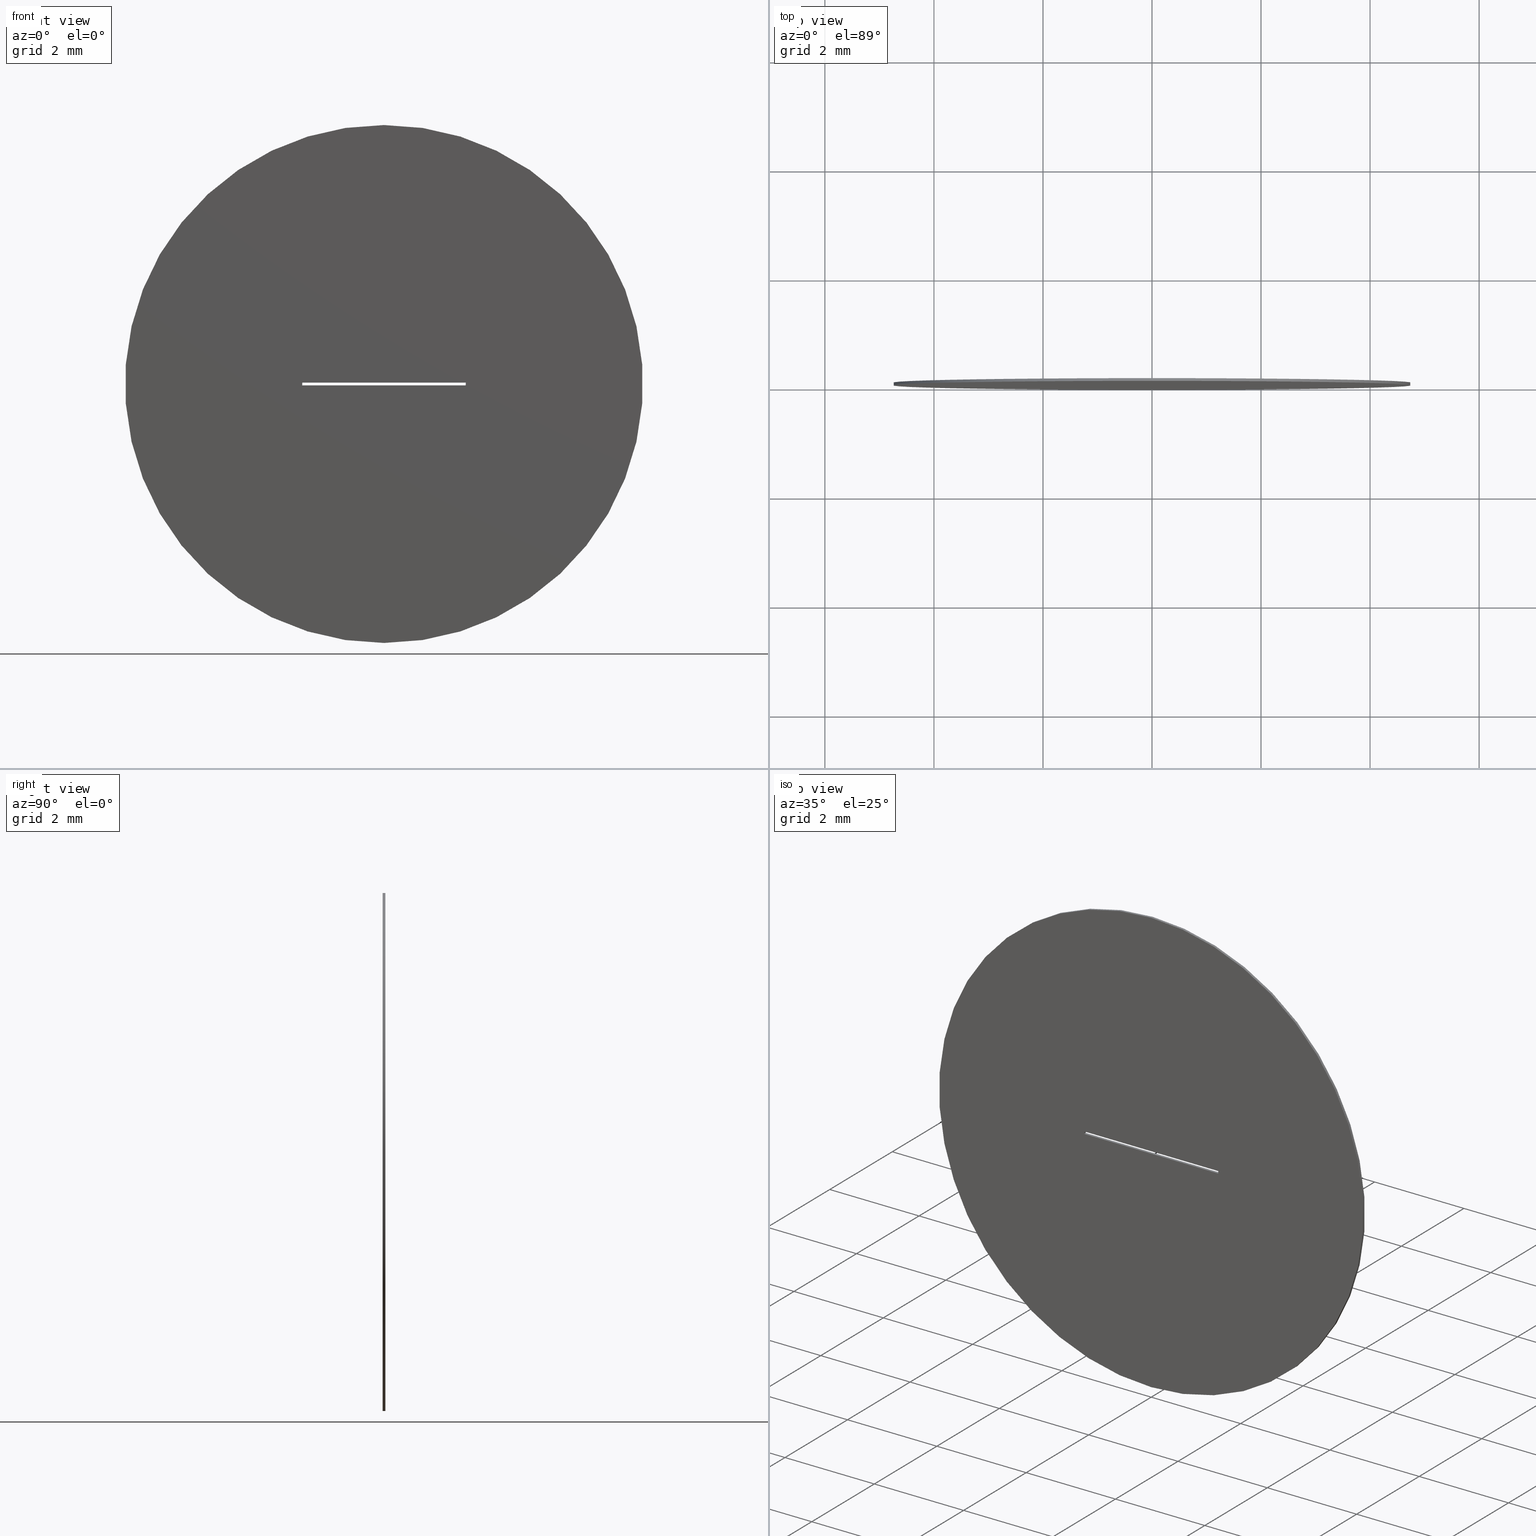
[diagram: canonical four-view strip — front | top / right | iso, engineering-drawing reading convention]
A machine part, canonical four-view strip (front | top / right | iso — engineering-drawing reading convention). The complete STEP part file that produces these views, byte-faithful:
ISO-10303-21;
HEADER;
FILE_DESCRIPTION (( 'STEP AP203' ),
    '1' );
FILE_NAME ('1.5.4.7-ZXG-9.5-50.STEP',
    '2024-05-29T06:48:49',
    ( '' ),
    ( '' ),
    'SwSTEP 2.0',
    'SolidWorks 2021',
    '' );
FILE_SCHEMA (( 'CONFIG_CONTROL_DESIGN' ));
ENDSEC;

DATA;
#1 = EDGE_CURVE ( 'NONE', #161, #24, #122, .T. ) ;
#2 = DATE_AND_TIME ( #44, #307 ) ;
#3 = AXIS2_PLACEMENT_3D ( 'NONE', #189, #29, #76 ) ;
#4 = DIRECTION ( 'NONE',  ( 0.000000000000000000, 0.000000000000000000, 1.000000000000000000 ) ) ;
#5 = APPROVAL_PERSON_ORGANIZATION ( #93, #179, #184 ) ;
#6 = DIRECTION ( 'NONE',  ( -0.000000000000000000, -1.000000000000000000, -0.000000000000000000 ) ) ;
#7 = CARTESIAN_POINT ( 'NONE',  ( 0.000000000000000000, 0.05000000000000000278, 0.000000000000000000 ) ) ;
#8 = EDGE_CURVE ( 'NONE', #161, #180, #286, .T. ) ;
#9 = CARTESIAN_POINT ( 'NONE',  ( 0.000000000000000000, 0.05000000000000000278, 0.000000000000000000 ) ) ;
#10 = AXIS2_PLACEMENT_3D ( 'NONE', #34, #219, #111 ) ;
#11 = CARTESIAN_POINT ( 'NONE',  ( -1.500000000000000000, 0.05000000000000000278, -0.02499999999999999792 ) ) ;
#12 = DIRECTION ( 'NONE',  ( 1.000000000000000000, 0.000000000000000000, 0.000000000000000000 ) ) ;
#13 = CARTESIAN_POINT ( 'NONE',  ( 1.500000000000000000, 0.000000000000000000, 0.02500000000000000486 ) ) ;
#14 =( NAMED_UNIT ( * ) SI_UNIT ( $, .STERADIAN. ) SOLID_ANGLE_UNIT ( ) );
#15 = ADVANCED_FACE ( 'NONE', ( #290 ), #56, .T. ) ;
#16 = DIRECTION ( 'NONE',  ( -0.000000000000000000, -1.000000000000000000, -0.000000000000000000 ) ) ;
#17 = LINE ( 'NONE', #271, #190 ) ;
#18 = EDGE_LOOP ( 'NONE', ( #48, #156 ) ) ;
#19 = EDGE_LOOP ( 'NONE', ( #176, #158, #226, #132 ) ) ;
#20 = LOCAL_TIME ( 14, 48, 49.00000000000000000, #25 ) ;
#21 = EDGE_LOOP ( 'NONE', ( #228, #88, #258, #92 ) ) ;
#22 = APPROVAL ( #202, 'δָ��' ) ;
#23 = ORIENTED_EDGE ( 'NONE', *, *, #260, .F. ) ;
#24 = VERTEX_POINT ( 'NONE', #124 ) ;
#25 = COORDINATED_UNIVERSAL_TIME_OFFSET ( 8, 0, .AHEAD. ) ;
#26 = DESIGN_CONTEXT ( 'detailed design', #54, 'design' ) ;
#27 = LINE ( 'NONE', #213, #256 ) ;
#28 = CC_DESIGN_SECURITY_CLASSIFICATION ( #206, ( #150 ) ) ;
#29 = DIRECTION ( 'NONE',  ( -0.000000000000000000, -1.000000000000000000, -0.000000000000000000 ) ) ;
#30 = CC_DESIGN_PERSON_AND_ORGANIZATION_ASSIGNMENT ( #257, #72, ( #206 ) ) ;
#31 = DIRECTION ( 'NONE',  ( 0.000000000000000000, 1.000000000000000000, 0.000000000000000000 ) ) ;
#32 = CARTESIAN_POINT ( 'NONE',  ( -1.500000000000000000, 0.05000000000000000278, 0.02500000000000000486 ) ) ;
#33 = DIRECTION ( 'NONE',  ( 0.000000000000000000, 1.000000000000000000, 0.000000000000000000 ) ) ;
#34 = CARTESIAN_POINT ( 'NONE',  ( 0.000000000000000000, 0.000000000000000000, 0.000000000000000000 ) ) ;
#35 = APPLICATION_CONTEXT ( 'configuration controlled 3d designs of mechanical parts and assemblies' ) ;
#36 = ORGANIZATION ( 'δָ��', 'δָ��', '' ) ;
#37 = PLANE ( 'NONE',  #183 ) ;
#38 = DIRECTION ( 'NONE',  ( 0.000000000000000000, 0.000000000000000000, 1.000000000000000000 ) ) ;
#39 = AXIS2_PLACEMENT_3D ( 'NONE', #263, #215, #145 ) ;
#40 = ORIENTED_EDGE ( 'NONE', *, *, #166, .T. ) ;
#41 = ORIENTED_EDGE ( 'NONE', *, *, #193, .F. ) ;
#42 = ORIENTED_EDGE ( 'NONE', *, *, #280, .F. ) ;
#43 = COORDINATED_UNIVERSAL_TIME_OFFSET ( 8, 0, .AHEAD. ) ;
#44 = CALENDAR_DATE ( 2024, 29, 5 ) ;
#45 = VECTOR ( 'NONE', #171, 1000.000000000000000 ) ;
#46 = ORIENTED_EDGE ( 'NONE', *, *, #8, .F. ) ;
#47 = APPROVAL_STATUS ( 'not_yet_approved' ) ;
#48 = ORIENTED_EDGE ( 'NONE', *, *, #197, .F. ) ;
#49 = FACE_OUTER_BOUND ( 'NONE', #310, .T. ) ;
#50 = CALENDAR_DATE ( 2024, 29, 5 ) ;
#51 = SHAPE_DEFINITION_REPRESENTATION ( #281, #241 ) ;
#52 = EDGE_CURVE ( 'NONE', #180, #161, #123, .T. ) ;
#53 = DIRECTION ( 'NONE',  ( -0.000000000000000000, -1.000000000000000000, -0.000000000000000000 ) ) ;
#54 = APPLICATION_CONTEXT ( 'configuration controlled 3d designs of mechanical parts and assemblies' ) ;
#55 = PLANE ( 'NONE',  #182 ) ;
#56 = PLANE ( 'NONE',  #300 ) ;
#57 = ADVANCED_FACE ( 'NONE', ( #97 ), #289, .T. ) ;
#58 = CARTESIAN_POINT ( 'NONE',  ( 1.500000000000000000, 0.05000000000000000278, -0.02499999999999999792 ) ) ;
#59 =( GEOMETRIC_REPRESENTATION_CONTEXT ( 3 ) GLOBAL_UNCERTAINTY_ASSIGNED_CONTEXT ( ( #232 ) ) GLOBAL_UNIT_ASSIGNED_CONTEXT ( ( #194, #221, #14 ) ) REPRESENTATION_CONTEXT ( 'NONE', 'WORKASPACE' ) );
#60 = FACE_OUTER_BOUND ( 'NONE', #18, .T. ) ;
#61 = CC_DESIGN_DATE_AND_TIME_ASSIGNMENT ( #259, #118, ( #147 ) ) ;
#62 = APPROVAL_PERSON_ORGANIZATION ( #283, #22, #204 ) ;
#63 = APPLICATION_PROTOCOL_DEFINITION ( 'international standard', 'config_control_design', 1994, #35 ) ;
#64 = LINE ( 'NONE', #272, #45 ) ;
#65 = ADVANCED_FACE ( 'NONE', ( #73, #238 ), #55, .T. ) ;
#66 = PERSON ( 'δָ��', 'δָ��', 'δָ��', ('δָ��'), ('δָ��'), ('δָ��') ) ;
#67 = VERTEX_POINT ( 'NONE', #164 ) ;
#68 = EDGE_LOOP ( 'NONE', ( #284, #230, #157, #136 ) ) ;
#69 = PERSON_AND_ORGANIZATION_ROLE ( 'design_supplier' ) ;
#70 = CC_DESIGN_APPROVAL ( #179, ( #150 ) ) ;
#71 = VERTEX_POINT ( 'NONE', #162 ) ;
#72 = PERSON_AND_ORGANIZATION_ROLE ( 'classification_officer' ) ;
#73 = FACE_OUTER_BOUND ( 'NONE', #205, .T. ) ;
#74 = APPROVAL_DATE_TIME ( #2, #22 ) ;
#75 = EDGE_CURVE ( 'NONE', #67, #133, #168, .T. ) ;
#76 = DIRECTION ( 'NONE',  ( 0.000000000000000000, 0.000000000000000000, -1.000000000000000000 ) ) ;
#77 = DIRECTION ( 'NONE',  ( -1.000000000000000000, -0.000000000000000000, -0.000000000000000000 ) ) ;
#78 = CARTESIAN_POINT ( 'NONE',  ( 0.000000000000000000, 0.05000000000000000278, 0.000000000000000000 ) ) ;
#79 = DIRECTION ( 'NONE',  ( -0.000000000000000000, -0.000000000000000000, -1.000000000000000000 ) ) ;
#80 = DIRECTION ( 'NONE',  ( 0.000000000000000000, -0.000000000000000000, 1.000000000000000000 ) ) ;
#81 = VECTOR ( 'NONE', #261, 1000.000000000000000 ) ;
#82 = LINE ( 'NONE', #247, #296 ) ;
#83 = CC_DESIGN_PERSON_AND_ORGANIZATION_ASSIGNMENT ( #115, #163, ( #147 ) ) ;
#84 = CARTESIAN_POINT ( 'NONE',  ( 0.000000000000000000, 0.000000000000000000, 0.000000000000000000 ) ) ;
#85 = VECTOR ( 'NONE', #117, 1000.000000000000000 ) ;
#86 = DIRECTION ( 'NONE',  ( 0.000000000000000000, 1.000000000000000000, 0.000000000000000000 ) ) ;
#87 = PERSON_AND_ORGANIZATION_ROLE ( 'design_owner' ) ;
#88 = ORIENTED_EDGE ( 'NONE', *, *, #201, .F. ) ;
#89 = VERTEX_POINT ( 'NONE', #143 ) ;
#90 = ORIENTED_EDGE ( 'NONE', *, *, #116, .F. ) ;
#91 = ORIENTED_EDGE ( 'NONE', *, *, #75, .F. ) ;
#92 = ORIENTED_EDGE ( 'NONE', *, *, #193, .T. ) ;
#93 = PERSON_AND_ORGANIZATION ( #66, #36 ) ;
#94 = CARTESIAN_POINT ( 'NONE',  ( -1.500000000000000000, 0.05000000000000000278, -0.02499999999999999792 ) ) ;
#95 = DATE_AND_TIME ( #138, #20 ) ;
#96 = DIRECTION ( 'NONE',  ( 0.000000000000000000, 0.000000000000000000, -1.000000000000000000 ) ) ;
#97 = FACE_OUTER_BOUND ( 'NONE', #106, .T. ) ;
#98 = FACE_OUTER_BOUND ( 'NONE', #308, .T. ) ;
#99 = VECTOR ( 'NONE', #79, 1000.000000000000000 ) ;
#100 = LINE ( 'NONE', #192, #99 ) ;
#101 = FACE_OUTER_BOUND ( 'NONE', #19, .T. ) ;
#102 = DIRECTION ( 'NONE',  ( 1.000000000000000000, 0.000000000000000000, 0.000000000000000000 ) ) ;
#103 = CARTESIAN_POINT ( 'NONE',  ( 0.000000000000000000, 0.000000000000000000, -4.750000000000000000 ) ) ;
#104 = CC_DESIGN_PERSON_AND_ORGANIZATION_ASSIGNMENT ( #107, #87, ( #227 ) ) ;
#105 = VECTOR ( 'NONE', #270, 1000.000000000000000 ) ;
#106 = EDGE_LOOP ( 'NONE', ( #46, #282, #181, #114 ) ) ;
#107 = PERSON_AND_ORGANIZATION ( #66, #36 ) ;
#108 = ORIENTED_EDGE ( 'NONE', *, *, #8, .T. ) ;
#109 = EDGE_CURVE ( 'NONE', #250, #71, #218, .T. ) ;
#110 = VECTOR ( 'NONE', #243, 1000.000000000000000 ) ;
#111 = DIRECTION ( 'NONE',  ( 1.000000000000000000, 0.000000000000000000, 0.000000000000000000 ) ) ;
#112 = ORIENTED_EDGE ( 'NONE', *, *, #197, .T. ) ;
#113 = APPROVAL_ROLE ( '' ) ;
#114 = ORIENTED_EDGE ( 'NONE', *, *, #305, .F. ) ;
#115 = PERSON_AND_ORGANIZATION ( #66, #36 ) ;
#116 = EDGE_CURVE ( 'NONE', #203, #250, #144, .T. ) ;
#117 = DIRECTION ( 'NONE',  ( -0.000000000000000000, -1.000000000000000000, -0.000000000000000000 ) ) ;
#118 = DATE_TIME_ROLE ( 'creation_date' ) ;
#119 = VECTOR ( 'NONE', #53, 1000.000000000000000 ) ;
#120 = DIRECTION ( 'NONE',  ( 0.000000000000000000, 1.000000000000000000, 0.000000000000000000 ) ) ;
#121 = DIRECTION ( 'NONE',  ( -1.000000000000000000, 0.000000000000000000, -0.000000000000000000 ) ) ;
#122 = LINE ( 'NONE', #214, #119 ) ;
#123 = CIRCLE ( 'NONE', #149, 4.750000000000000000 ) ;
#124 = CARTESIAN_POINT ( 'NONE',  ( 5.817072295949927426E-16, 0.000000000000000000, 4.750000000000000000 ) ) ;
#125 = AXIS2_PLACEMENT_3D ( 'NONE', #173, #299, #195 ) ;
#126 = DIRECTION ( 'NONE',  ( 0.000000000000000000, 0.000000000000000000, -1.000000000000000000 ) ) ;
#127 = ADVANCED_FACE ( 'NONE', ( #49 ), #167, .T. ) ;
#128 = FACE_OUTER_BOUND ( 'NONE', #251, .T. ) ;
#129 = APPROVAL ( #254, 'δָ��' ) ;
#130 = DIRECTION ( 'NONE',  ( 0.000000000000000000, 0.000000000000000000, 1.000000000000000000 ) ) ;
#131 = MECHANICAL_CONTEXT ( 'NONE', #35, 'mechanical' ) ;
#132 = ORIENTED_EDGE ( 'NONE', *, *, #201, .T. ) ;
#133 = VERTEX_POINT ( 'NONE', #295 ) ;
#134 = ADVANCED_FACE ( 'NONE', ( #98 ), #267, .T. ) ;
#135 = DATE_AND_TIME ( #154, #242 ) ;
#136 = ORIENTED_EDGE ( 'NONE', *, *, #239, .T. ) ;
#137 = VECTOR ( 'NONE', #102, 1000.000000000000000 ) ;
#138 = CALENDAR_DATE ( 2024, 29, 5 ) ;
#139 = ORIENTED_EDGE ( 'NONE', *, *, #280, .T. ) ;
#140 = DIRECTION ( 'NONE',  ( -1.000000000000000000, 0.000000000000000000, 0.000000000000000000 ) ) ;
#141 = DATE_AND_TIME ( #50, #155 ) ;
#142 = VECTOR ( 'NONE', #276, 1000.000000000000000 ) ;
#143 = CARTESIAN_POINT ( 'NONE',  ( -1.500000000000000000, 0.000000000000000000, 0.02500000000000000486 ) ) ;
#144 = LINE ( 'NONE', #146, #264 ) ;
#145 = DIRECTION ( 'NONE',  ( 0.000000000000000000, 0.000000000000000000, -1.000000000000000000 ) ) ;
#146 = CARTESIAN_POINT ( 'NONE',  ( -1.500000000000000000, 0.05000000000000000278, -0.02499999999999999792 ) ) ;
#147 = PRODUCT_DEFINITION ( 'δ֪', '', #150, #26 ) ;
#148 = CARTESIAN_POINT ( 'NONE',  ( -1.500000000000000000, 0.05000000000000000278, -0.02499999999999999792 ) ) ;
#149 = AXIS2_PLACEMENT_3D ( 'NONE', #78, #31, #4 ) ;
#150 = PRODUCT_DEFINITION_FORMATION_WITH_SPECIFIED_SOURCE ( '�κ�', '', #227, .NOT_KNOWN. ) ;
#151 = CARTESIAN_POINT ( 'NONE',  ( -1.500000000000000000, 0.05000000000000000278, -0.02499999999999999792 ) ) ;
#152 = CARTESIAN_POINT ( 'NONE',  ( 0.000000000000000000, 0.000000000000000000, 0.000000000000000000 ) ) ;
#153 = VERTEX_POINT ( 'NONE', #191 ) ;
#154 = CALENDAR_DATE ( 2024, 29, 5 ) ;
#155 = LOCAL_TIME ( 14, 48, 49.00000000000000000, #262 ) ;
#156 = ORIENTED_EDGE ( 'NONE', *, *, #220, .F. ) ;
#157 = ORIENTED_EDGE ( 'NONE', *, *, #217, .T. ) ;
#158 = ORIENTED_EDGE ( 'NONE', *, *, #109, .F. ) ;
#159 = EDGE_CURVE ( 'NONE', #209, #153, #100, .T. ) ;
#160 = SECURITY_CLASSIFICATION_LEVEL ( 'unclassified' ) ;
#161 = VERTEX_POINT ( 'NONE', #169 ) ;
#162 = CARTESIAN_POINT ( 'NONE',  ( -1.500000000000000000, 0.000000000000000000, -0.02499999999999999792 ) ) ;
#163 = PERSON_AND_ORGANIZATION_ROLE ( 'creator' ) ;
#164 = CARTESIAN_POINT ( 'NONE',  ( -1.500000000000000000, 0.05000000000000000278, 0.02500000000000000486 ) ) ;
#165 = LOCAL_TIME ( 14, 48, 49.00000000000000000, #285 ) ;
#166 = EDGE_CURVE ( 'NONE', #133, #203, #268, .T. ) ;
#167 = CYLINDRICAL_SURFACE ( 'NONE', #39, 4.750000000000000000 ) ;
#168 = LINE ( 'NONE', #32, #81 ) ;
#169 = CARTESIAN_POINT ( 'NONE',  ( 5.817072295949927426E-16, 0.05000000000000000278, 4.750000000000000000 ) ) ;
#170 = LINE ( 'NONE', #302, #105 ) ;
#171 = DIRECTION ( 'NONE',  ( -0.000000000000000000, -1.000000000000000000, -0.000000000000000000 ) ) ;
#172 = DIRECTION ( 'NONE',  ( 0.000000000000000000, 0.000000000000000000, 1.000000000000000000 ) ) ;
#173 = CARTESIAN_POINT ( 'NONE',  ( 0.000000000000000000, 0.000000000000000000, 0.000000000000000000 ) ) ;
#174 = FACE_BOUND ( 'NONE', #68, .T. ) ;
#175 = CC_DESIGN_PERSON_AND_ORGANIZATION_ASSIGNMENT ( #311, #69, ( #150 ) ) ;
#176 = ORIENTED_EDGE ( 'NONE', *, *, #217, .F. ) ;
#177 = APPROVAL_DATE_TIME ( #135, #129 ) ;
#178 = ORIENTED_EDGE ( 'NONE', *, *, #116, .T. ) ;
#179 = APPROVAL ( #47, 'δָ��' ) ;
#180 = VERTEX_POINT ( 'NONE', #210 ) ;
#181 = ORIENTED_EDGE ( 'NONE', *, *, #220, .T. ) ;
#182 = AXIS2_PLACEMENT_3D ( 'NONE', #9, #120, #292 ) ;
#183 = AXIS2_PLACEMENT_3D ( 'NONE', #244, #38, #274 ) ;
#184 = APPROVAL_ROLE ( '' ) ;
#185 = LINE ( 'NONE', #94, #273 ) ;
#186 = DIRECTION ( 'NONE',  ( 0.000000000000000000, 0.000000000000000000, 1.000000000000000000 ) ) ;
#187 = MANIFOLD_SOLID_BREP ( '͹̨-����1', #216 ) ;
#188 = EDGE_CURVE ( 'NONE', #250, #67, #185, .T. ) ;
#189 = CARTESIAN_POINT ( 'NONE',  ( 0.000000000000000000, 0.05000000000000000278, 0.000000000000000000 ) ) ;
#190 = VECTOR ( 'NONE', #16, 1000.000000000000000 ) ;
#191 = CARTESIAN_POINT ( 'NONE',  ( 1.500000000000000000, 0.000000000000000000, -0.02499999999999999792 ) ) ;
#192 = CARTESIAN_POINT ( 'NONE',  ( 1.500000000000000000, 0.000000000000000000, -0.02499999999999999792 ) ) ;
#193 = EDGE_CURVE ( 'NONE', #133, #209, #27, .T. ) ;
#194 =( LENGTH_UNIT ( ) NAMED_UNIT ( * ) SI_UNIT ( .MILLI., .METRE. ) );
#195 = DIRECTION ( 'NONE',  ( 0.000000000000000000, 0.000000000000000000, 1.000000000000000000 ) ) ;
#196 = LINE ( 'NONE', #198, #142 ) ;
#197 = EDGE_CURVE ( 'NONE', #252, #24, #211, .T. ) ;
#198 = CARTESIAN_POINT ( 'NONE',  ( -1.500000000000000000, 0.05000000000000000278, 0.02500000000000000486 ) ) ;
#199 = CARTESIAN_POINT ( 'NONE',  ( -1.500000000000000000, 0.000000000000000000, 0.02500000000000000486 ) ) ;
#200 = ORIENTED_EDGE ( 'NONE', *, *, #166, .F. ) ;
#201 = EDGE_CURVE ( 'NONE', #67, #89, #196, .T. ) ;
#202 = APPROVAL_STATUS ( 'not_yet_approved' ) ;
#203 = VERTEX_POINT ( 'NONE', #297 ) ;
#204 = APPROVAL_ROLE ( '' ) ;
#205 = EDGE_LOOP ( 'NONE', ( #304, #108 ) ) ;
#206 = SECURITY_CLASSIFICATION ( '', '', #160 ) ;
#207 = ORIENTED_EDGE ( 'NONE', *, *, #109, .T. ) ;
#208 = CALENDAR_DATE ( 2024, 29, 5 ) ;
#209 = VERTEX_POINT ( 'NONE', #13 ) ;
#210 = CARTESIAN_POINT ( 'NONE',  ( 0.000000000000000000, 0.05000000000000000278, -4.750000000000000000 ) ) ;
#211 = CIRCLE ( 'NONE', #249, 4.750000000000000000 ) ;
#212 = APPROVAL_DATE_TIME ( #141, #179 ) ;
#213 = CARTESIAN_POINT ( 'NONE',  ( 1.500000000000000000, 0.05000000000000000278, 0.02500000000000000486 ) ) ;
#214 = CARTESIAN_POINT ( 'NONE',  ( 5.817072295949927426E-16, 0.05000000000000000278, 4.750000000000000000 ) ) ;
#215 = DIRECTION ( 'NONE',  ( -0.000000000000000000, -1.000000000000000000, -0.000000000000000000 ) ) ;
#216 = CLOSED_SHELL ( 'NONE', ( #57, #65, #287, #127, #134, #291, #275, #15 ) ) ;
#217 = EDGE_CURVE ( 'NONE', #71, #89, #82, .T. ) ;
#218 = LINE ( 'NONE', #11, #85 ) ;
#219 = DIRECTION ( 'NONE',  ( 0.000000000000000000, 0.000000000000000000, 1.000000000000000000 ) ) ;
#220 = EDGE_CURVE ( 'NONE', #24, #252, #223, .T. ) ;
#221 =( NAMED_UNIT ( * ) PLANE_ANGLE_UNIT ( ) SI_UNIT ( $, .RADIAN. ) );
#222 = LINE ( 'NONE', #199, #137 ) ;
#223 = CIRCLE ( 'NONE', #125, 4.750000000000000000 ) ;
#224 = APPLICATION_PROTOCOL_DEFINITION ( 'international standard', 'config_control_design', 1994, #54 ) ;
#225 = ORIENTED_EDGE ( 'NONE', *, *, #188, .F. ) ;
#226 = ORIENTED_EDGE ( 'NONE', *, *, #188, .T. ) ;
#227 = PRODUCT ( '1.5.4.7-ZXG-9.5-50', '1.5.4.7-ZXG-9.5-50', '', ( #131 ) ) ;
#228 = ORIENTED_EDGE ( 'NONE', *, *, #239, .F. ) ;
#229 = CC_DESIGN_APPROVAL ( #22, ( #147 ) ) ;
#230 = ORIENTED_EDGE ( 'NONE', *, *, #260, .T. ) ;
#231 = DATE_TIME_ROLE ( 'classification_date' ) ;
#232 = UNCERTAINTY_MEASURE_WITH_UNIT (LENGTH_MEASURE( 1.000000000000000082E-05 ), #194, 'distance_accuracy_value', 'NONE');
#233 = ORIENTED_EDGE ( 'NONE', *, *, #305, .T. ) ;
#234 = PERSON_AND_ORGANIZATION_ROLE ( 'creator' ) ;
#235 = DIRECTION ( 'NONE',  ( 0.000000000000000000, 0.000000000000000000, 1.000000000000000000 ) ) ;
#236 = PERSON_AND_ORGANIZATION ( #66, #36 ) ;
#237 = DIRECTION ( 'NONE',  ( 0.000000000000000000, 1.000000000000000000, 0.000000000000000000 ) ) ;
#238 = FACE_BOUND ( 'NONE', #255, .T. ) ;
#239 = EDGE_CURVE ( 'NONE', #89, #209, #222, .T. ) ;
#240 = DIRECTION ( 'NONE',  ( 0.000000000000000000, 0.000000000000000000, 1.000000000000000000 ) ) ;
#241 = ADVANCED_BREP_SHAPE_REPRESENTATION ( '1.5.4.7-ZXG-9.5-50', ( #187, #10 ), #59 ) ;
#242 = LOCAL_TIME ( 14, 48, 49.00000000000000000, #43 ) ;
#243 = DIRECTION ( 'NONE',  ( -0.000000000000000000, -0.000000000000000000, -1.000000000000000000 ) ) ;
#244 = CARTESIAN_POINT ( 'NONE',  ( -1.500000000000000000, 0.05000000000000000278, -0.02499999999999999792 ) ) ;
#245 = AXIS2_PLACEMENT_3D ( 'NONE', #148, #12, #126 ) ;
#246 = PLANE ( 'NONE',  #245 ) ;
#247 = CARTESIAN_POINT ( 'NONE',  ( -1.500000000000000000, 0.000000000000000000, -0.02499999999999999792 ) ) ;
#248 = CC_DESIGN_DATE_AND_TIME_ASSIGNMENT ( #95, #231, ( #206 ) ) ;
#249 = AXIS2_PLACEMENT_3D ( 'NONE', #152, #86, #130 ) ;
#250 = VERTEX_POINT ( 'NONE', #151 ) ;
#251 = EDGE_LOOP ( 'NONE', ( #23, #42, #178, #207 ) ) ;
#252 = VERTEX_POINT ( 'NONE', #103 ) ;
#253 = CC_DESIGN_PERSON_AND_ORGANIZATION_ASSIGNMENT ( #288, #234, ( #150 ) ) ;
#254 = APPROVAL_STATUS ( 'not_yet_approved' ) ;
#255 = EDGE_LOOP ( 'NONE', ( #90, #200, #91, #225 ) ) ;
#256 = VECTOR ( 'NONE', #6, 1000.000000000000000 ) ;
#257 = PERSON_AND_ORGANIZATION ( #66, #36 ) ;
#258 = ORIENTED_EDGE ( 'NONE', *, *, #75, .T. ) ;
#259 = DATE_AND_TIME ( #208, #165 ) ;
#260 = EDGE_CURVE ( 'NONE', #153, #71, #170, .T. ) ;
#261 = DIRECTION ( 'NONE',  ( 1.000000000000000000, 0.000000000000000000, 0.000000000000000000 ) ) ;
#262 = COORDINATED_UNIVERSAL_TIME_OFFSET ( 8, 0, .AHEAD. ) ;
#263 = CARTESIAN_POINT ( 'NONE',  ( 0.000000000000000000, 0.05000000000000000278, 0.000000000000000000 ) ) ;
#264 = VECTOR ( 'NONE', #77, 1000.000000000000000 ) ;
#265 = CARTESIAN_POINT ( 'NONE',  ( 1.500000000000000000, 0.05000000000000000278, -0.02499999999999999792 ) ) ;
#266 = PRODUCT_RELATED_PRODUCT_CATEGORY ( 'detail', '', ( #227 ) ) ;
#267 = PLANE ( 'NONE',  #278 ) ;
#268 = LINE ( 'NONE', #265, #110 ) ;
#269 = CC_DESIGN_APPROVAL ( #129, ( #206 ) ) ;
#270 = DIRECTION ( 'NONE',  ( -1.000000000000000000, -0.000000000000000000, -0.000000000000000000 ) ) ;
#271 = CARTESIAN_POINT ( 'NONE',  ( 0.000000000000000000, 0.05000000000000000278, -4.750000000000000000 ) ) ;
#272 = CARTESIAN_POINT ( 'NONE',  ( 1.500000000000000000, 0.05000000000000000278, -0.02499999999999999792 ) ) ;
#273 = VECTOR ( 'NONE', #235, 1000.000000000000000 ) ;
#274 = DIRECTION ( 'NONE',  ( 1.000000000000000000, 0.000000000000000000, -0.000000000000000000 ) ) ;
#275 = ADVANCED_FACE ( 'NONE', ( #101 ), #246, .T. ) ;
#276 = DIRECTION ( 'NONE',  ( -0.000000000000000000, -1.000000000000000000, -0.000000000000000000 ) ) ;
#277 = ORIENTED_EDGE ( 'NONE', *, *, #52, .F. ) ;
#278 = AXIS2_PLACEMENT_3D ( 'NONE', #58, #140, #240 ) ;
#279 = ORIENTED_EDGE ( 'NONE', *, *, #159, .F. ) ;
#280 = EDGE_CURVE ( 'NONE', #203, #153, #64, .T. ) ;
#281 = PRODUCT_DEFINITION_SHAPE ( 'NONE', 'NONE',  #147 ) ;
#282 = ORIENTED_EDGE ( 'NONE', *, *, #1, .T. ) ;
#283 = PERSON_AND_ORGANIZATION ( #66, #36 ) ;
#284 = ORIENTED_EDGE ( 'NONE', *, *, #159, .T. ) ;
#285 = COORDINATED_UNIVERSAL_TIME_OFFSET ( 8, 0, .AHEAD. ) ;
#286 = CIRCLE ( 'NONE', #306, 4.750000000000000000 ) ;
#287 = ADVANCED_FACE ( 'NONE', ( #60, #174 ), #298, .F. ) ;
#288 = PERSON_AND_ORGANIZATION ( #66, #36 ) ;
#289 = CYLINDRICAL_SURFACE ( 'NONE', #3, 4.750000000000000000 ) ;
#290 = FACE_OUTER_BOUND ( 'NONE', #21, .T. ) ;
#291 = ADVANCED_FACE ( 'NONE', ( #128 ), #37, .T. ) ;
#292 = DIRECTION ( 'NONE',  ( 0.000000000000000000, -0.000000000000000000, 1.000000000000000000 ) ) ;
#293 = AXIS2_PLACEMENT_3D ( 'NONE', #84, #33, #80 ) ;
#294 = CARTESIAN_POINT ( 'NONE',  ( -1.500000000000000000, 0.05000000000000000278, 0.02500000000000000486 ) ) ;
#295 = CARTESIAN_POINT ( 'NONE',  ( 1.500000000000000000, 0.05000000000000000278, 0.02500000000000000486 ) ) ;
#296 = VECTOR ( 'NONE', #172, 1000.000000000000000 ) ;
#297 = CARTESIAN_POINT ( 'NONE',  ( 1.500000000000000000, 0.05000000000000000278, -0.02499999999999999792 ) ) ;
#298 = PLANE ( 'NONE',  #293 ) ;
#299 = DIRECTION ( 'NONE',  ( 0.000000000000000000, 1.000000000000000000, 0.000000000000000000 ) ) ;
#300 = AXIS2_PLACEMENT_3D ( 'NONE', #294, #96, #121 ) ;
#301 = APPROVAL_PERSON_ORGANIZATION ( #236, #129, #113 ) ;
#302 = CARTESIAN_POINT ( 'NONE',  ( -1.500000000000000000, 0.000000000000000000, -0.02499999999999999792 ) ) ;
#303 = ORIENTED_EDGE ( 'NONE', *, *, #1, .F. ) ;
#304 = ORIENTED_EDGE ( 'NONE', *, *, #52, .T. ) ;
#305 = EDGE_CURVE ( 'NONE', #180, #252, #17, .T. ) ;
#306 = AXIS2_PLACEMENT_3D ( 'NONE', #7, #237, #186 ) ;
#307 = LOCAL_TIME ( 14, 48, 49.00000000000000000, #309 ) ;
#308 = EDGE_LOOP ( 'NONE', ( #279, #41, #40, #139 ) ) ;
#309 = COORDINATED_UNIVERSAL_TIME_OFFSET ( 8, 0, .AHEAD. ) ;
#310 = EDGE_LOOP ( 'NONE', ( #303, #277, #233, #112 ) ) ;
#311 = PERSON_AND_ORGANIZATION ( #66, #36 ) ;
ENDSEC;
END-ISO-10303-21;
